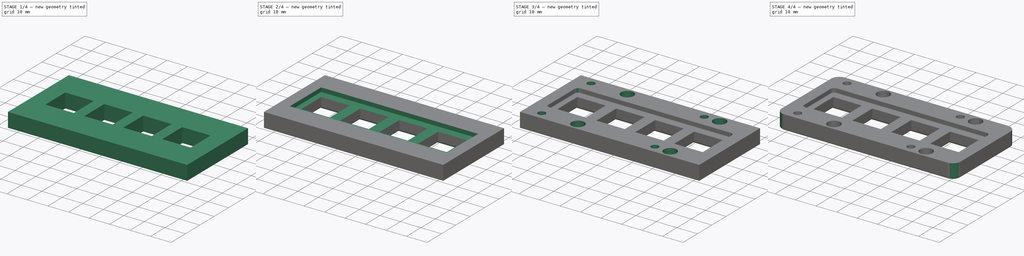
[diagram: build sequence overview — one tinted view per stage of 4, left to right]
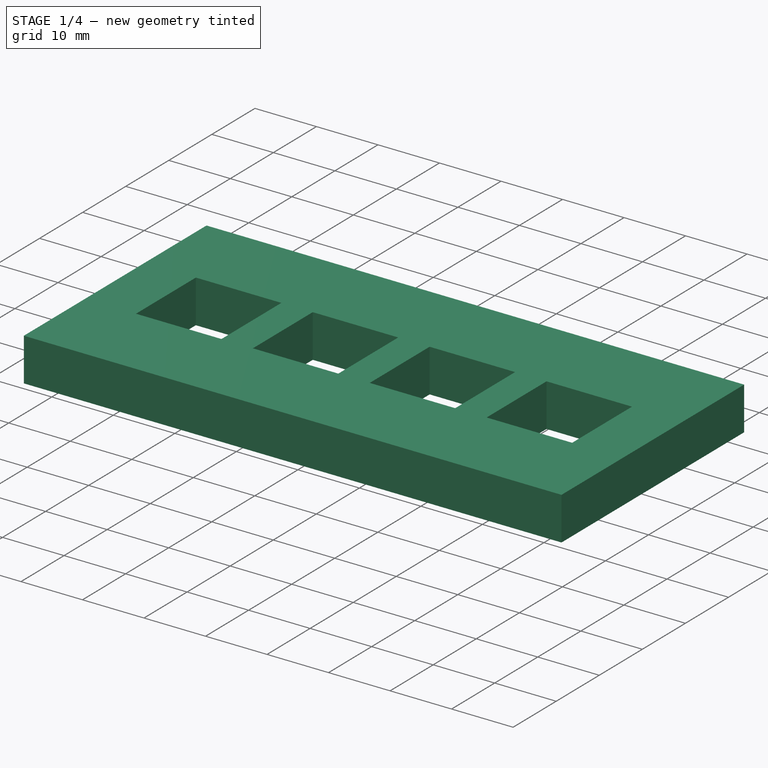
[diagram: stage 1 of 4 — iso view after this stage's code; geometry added in this stage tinted green]
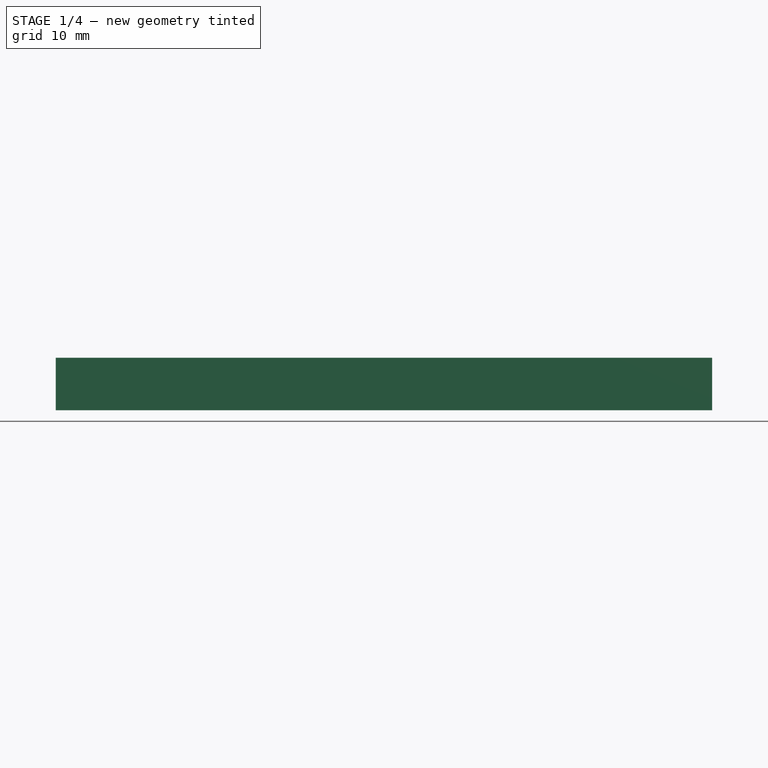
[diagram: stage 1 of 4 — front view after this stage's code; geometry added in this stage tinted green]
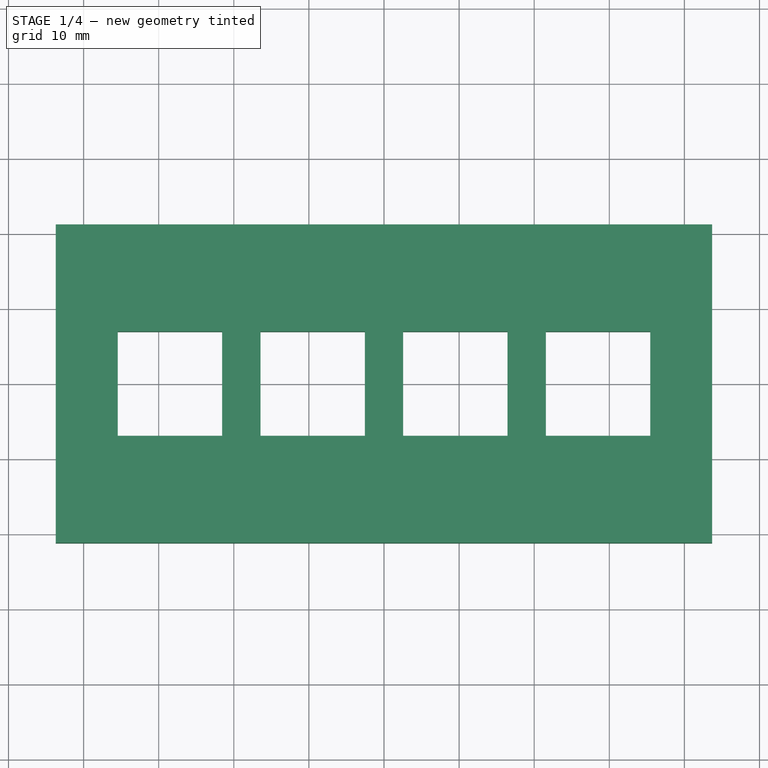
[diagram: stage 1 of 4 — top view after this stage's code; geometry added in this stage tinted green]
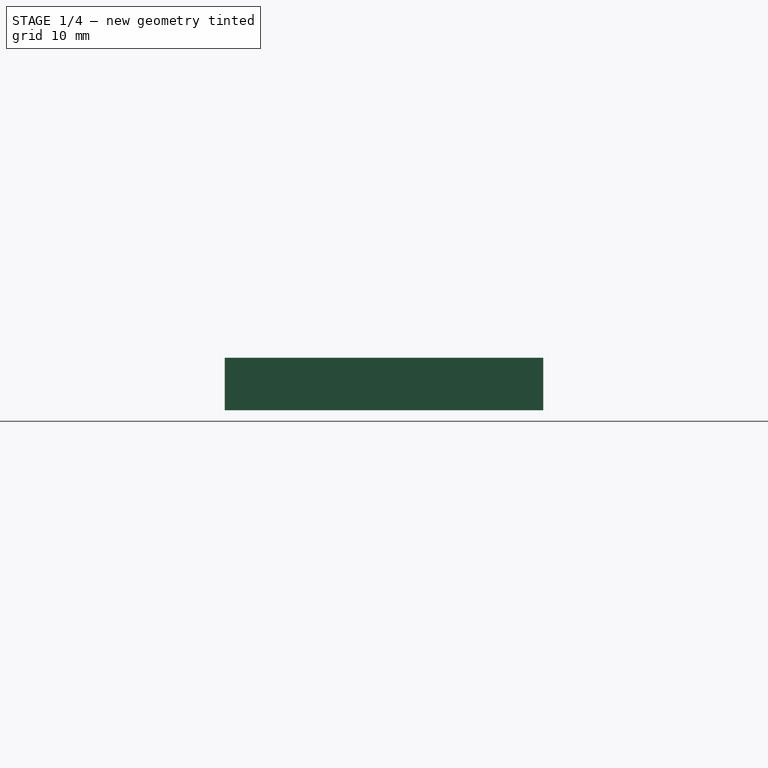
[diagram: stage 1 of 4 — right view after this stage's code; geometry added in this stage tinted green]
FCSTD DOCUMENT  (FreeCAD 0.21R33668 +26 (Git))
Label: keyPlateV1.0
License: All rights reserved
LicenseURL: https://en.wikipedia.org/wiki/All_rights_reserved
objects: Sketcher::SketchObject×7, PartDesign::Pocket×3, PartDesign::Plane×2, PartDesign::Chamfer×2, PartDesign::Fillet×2, PartDesign::Hole×2, PartDesign::Pad×1, PartDesign::Body×1
note: 30 computed .brp shape members not serialized (recipe doc carries the construction recipe); baked Part::Feature solids carry a one-line shape summary decoded from their .brp

FEATURE [Sketcher::SketchObject] Sketch
  FullyConstrained = true
  MapMode = 5
  Support = -> [XY_Plane]
  sketch-geometry (4):
    g0: LineSegment StartX=-43.7 StartY=-21.2 StartZ=0 EndX=43.7 EndY=-21.2 EndZ=0
    g1: LineSegment StartX=43.7 StartY=-21.2 StartZ=0 EndX=43.7 EndY=21.2 EndZ=0
    g2: LineSegment StartX=43.7 StartY=21.2 StartZ=0 EndX=-43.7 EndY=21.2 EndZ=0
    g3: LineSegment StartX=-43.7 StartY=21.2 StartZ=0 EndX=-43.7 EndY=-21.2 EndZ=0
  constraints (12):
    c: Coincident(g0,g1)
    c: Coincident(g1,g2)
    c: Coincident(g2,g3)
    c: Coincident(g3,g0)
    c: Horizontal(g0)
    c: Horizontal(g2)
    c: Vertical(g1)
    c: Vertical(g3)
    c: Distance(g0) = 87.4
    c: Distance(g3) = 42.4
    c: DistanceX(g2,g-1) = 43.7
    c: DistanceY(g-1,g2) = 21.2
FEATURE [PartDesign::Pad] Pad
  Direction = (0,0,1)
  Length = 7
  Length2 = 10
  Profile = -> Sketch
  ReferenceAxis = -> Sketch [N_Axis]
  Type = 0
FEATURE [PartDesign::Plane] DatumPlane
  Length = 100.621
  MapMode = 5
  Placement = pos=(0,0,7) rot=(0,0,1;0rad)
  ResizeMode = 0
  Support = -> [Pad]
  Width = 63.2212
FEATURE [Sketcher::SketchObject] Sketch001
  FullyConstrained = true
  MapMode = 5
  Placement = pos=(0,0,7) rot=(0,0,1;0rad)
  Support = -> [DatumPlane]
  sketch-geometry (20):
    g0: LineSegment StartX=-2.55 StartY=-6.95 StartZ=0 EndX=-2.55 EndY=6.95 EndZ=0
    g1: LineSegment StartX=-2.55 StartY=6.95 StartZ=0 EndX=-16.45 EndY=6.95 EndZ=0
    g2: LineSegment StartX=-16.45 StartY=6.95 StartZ=0 EndX=-16.45 EndY=-6.95 EndZ=0
    g3: LineSegment StartX=-16.45 StartY=-6.95 StartZ=0 EndX=-2.55 EndY=-6.95 EndZ=0
    g4: GeomPoint X=-9.5 Y=0 Z=0
    g5: LineSegment StartX=16.45 StartY=-6.95 StartZ=0 EndX=16.45 EndY=6.95 EndZ=0
    g6: LineSegment StartX=16.45 StartY=6.95 StartZ=0 EndX=2.55 EndY=6.95 EndZ=0
    g7: LineSegment StartX=2.55 StartY=6.95 StartZ=0 EndX=2.55 EndY=-6.95 EndZ=0
    g8: LineSegment StartX=2.55 StartY=-6.95 StartZ=0 EndX=16.45 EndY=-6.95 EndZ=0
    g9: GeomPoint X=9.5 Y=0 Z=0
    g10: LineSegment StartX=35.45 StartY=-6.95 StartZ=0 EndX=35.45 EndY=6.95 EndZ=0
    g11: LineSegment StartX=35.45 StartY=6.95 StartZ=0 EndX=21.55 EndY=6.95 EndZ=0
    g12: LineSegment StartX=21.55 StartY=6.95 StartZ=0 EndX=21.55 EndY=-6.95 EndZ=0
    g13: LineSegment StartX=21.55 StartY=-6.95 StartZ=0 EndX=35.45 EndY=-6.95 EndZ=0
    g14: GeomPoint X=28.5 Y=0 Z=0
    g15: LineSegment StartX=-35.45 StartY=-6.95 StartZ=0 EndX=-35.45 EndY=6.95 EndZ=0
    g16: LineSegment StartX=-35.45 StartY=6.95 StartZ=0 EndX=-21.55 EndY=6.95 EndZ=0
    g17: LineSegment StartX=-21.55 StartY=6.95 StartZ=0 EndX=-21.55 EndY=-6.95 EndZ=0
    g18: LineSegment StartX=-21.55 StartY=-6.95 StartZ=0 EndX=-35.45 EndY=-6.95 EndZ=0
    g19: GeomPoint X=-28.5 Y=0 Z=0
  constraints (52):
    c: Coincident(g0,g1)
    c: Coincident(g1,g2)
    c: Coincident(g2,g3)
    c: Coincident(g3,g0)
    c: Horizontal(g1)
    c: Horizontal(g3)
    c: Vertical(g0)
    c: Vertical(g2)
    c: Symmetric(g1,g0,g4)
    c: PointOnObject(g4,g-1)
    c: Coincident(g5,g6)
    c: Coincident(g6,g7)
    c: Coincident(g7,g8)
    c: Coincident(g8,g5)
    c: Horizontal(g6)
    c: Horizontal(g8)
    c: Vertical(g5)
    c: Vertical(g7)
    c: Symmetric(g6,g5,g9)
    c: PointOnObject(g9,g-1)
    c: Distance(g1) = 13.9
    c: DistanceX(g4,g9) = 19
    c: DistanceX(g4,g-1) = 9.5
    c: Coincident(g10,g11)
    c: Coincident(g11,g12)
    c: Coincident(g12,g13)
    c: Coincident(g13,g10)
    c: Horizontal(g11)
    c: Horizontal(g13)
    c: Vertical(g10)
    c: Vertical(g12)
    c: Symmetric(g11,g10,g14)
    c: PointOnObject(g14,g-1)
    c: Coincident(g15,g16)
    c: Coincident(g16,g17)
    c: Coincident(g17,g18)
    c: Coincident(g18,g15)
    c: Horizontal(g16)
    c: Horizontal(g18)
    c: Vertical(g15)
    c: Vertical(g17)
    c: Symmetric(g16,g15,g19)
    c: PointOnObject(g19,g-1)
    c: DistanceX(g9,g14) = 19
    c: DistanceX(g19,g4) = 19
    c: Equal(g1,g0)
    c: Equal(g1,g16)
    c: Equal(g1,g17)
    c: Equal(g1,g6)
    c: Equal(g1,g5)
    c: Equal(g1,g11)
    c: Equal(g1,g10)
FEATURE [PartDesign::Pocket] Pocket
  BaseFeature = -> Pad
  Direction = (0,0,-1)
  Length = 0
  Length2 = 5
  Profile = -> Sketch001
  ReferenceAxis = -> Sketch001 [N_Axis]
  Type = 3
  UpToFace = -> Pad [Face5]
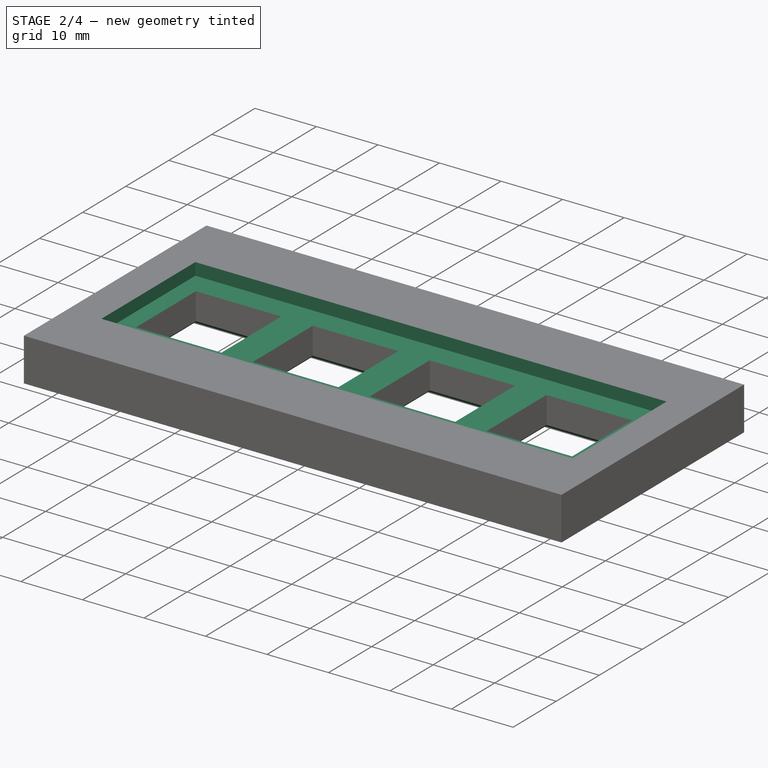
[diagram: stage 2 of 4 — iso view after this stage's code; geometry added in this stage tinted green]
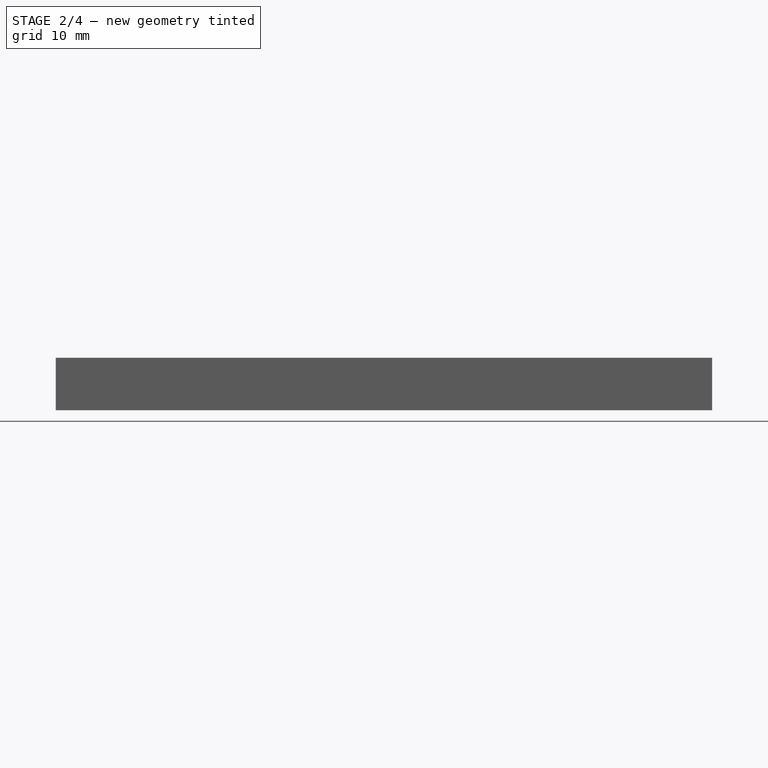
[diagram: stage 2 of 4 — front view after this stage's code; geometry added in this stage tinted green]
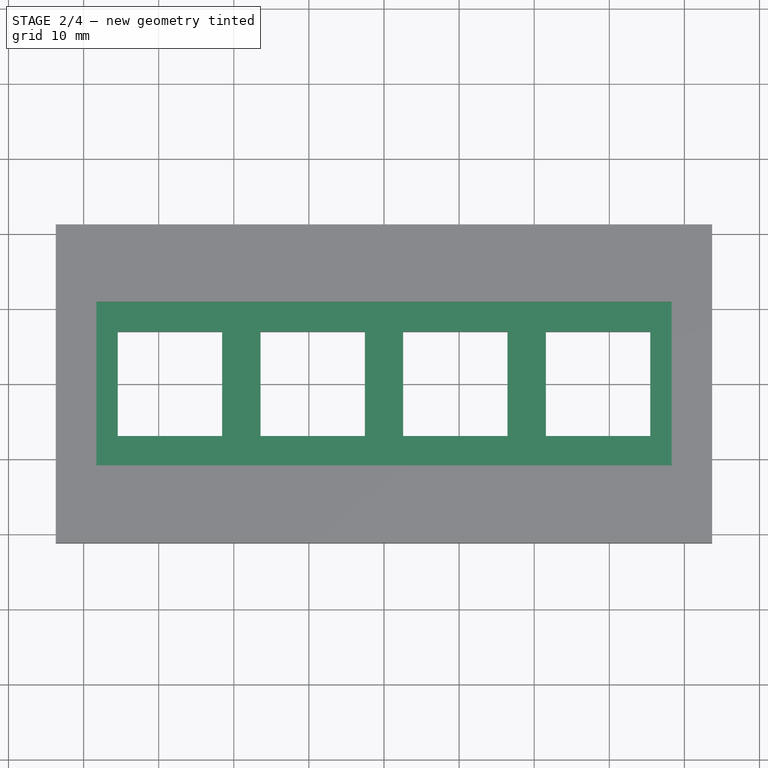
[diagram: stage 2 of 4 — top view after this stage's code; geometry added in this stage tinted green]
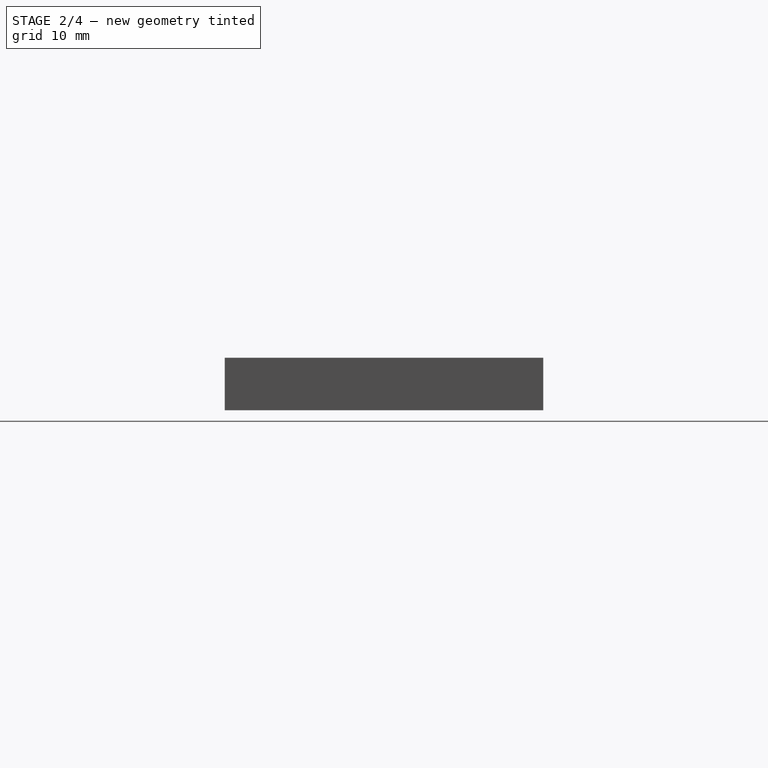
[diagram: stage 2 of 4 — right view after this stage's code; geometry added in this stage tinted green]
FEATURE [Sketcher::SketchObject] Sketch002
  FullyConstrained = true
  MapMode = 5
  Placement = pos=(0,0,7) rot=(0,0,1;0rad)
  Support = -> [DatumPlane]
  sketch-geometry (5):
    g0: LineSegment StartX=-38.3 StartY=-10.9 StartZ=0 EndX=-38.3 EndY=10.9 EndZ=0
    g1: LineSegment StartX=-38.3 StartY=10.9 StartZ=0 EndX=38.3 EndY=10.9 EndZ=0
    g2: LineSegment StartX=38.3 StartY=10.9 StartZ=0 EndX=38.3 EndY=-10.9 EndZ=0
    g3: LineSegment StartX=38.3 StartY=-10.9 StartZ=0 EndX=-38.3 EndY=-10.9 EndZ=0
    g4: GeomPoint X=0 Y=0 Z=0
  constraints (12):
    c: Coincident(g0,g1)
    c: Coincident(g1,g2)
    c: Coincident(g2,g3)
    c: Coincident(g3,g0)
    c: Horizontal(g1)
    c: Horizontal(g3)
    c: Vertical(g0)
    c: Vertical(g2)
    c: Symmetric(g1,g0,g4)
    c: Distance(g3) = 76.6
    c: Distance(g0) = 21.8
    c: Coincident(g4,g-1)
FEATURE [PartDesign::Pocket] Pocket001
  BaseFeature = -> Pocket
  Direction = (0,0,-1)
  Length = 2
  Length2 = 5
  Profile = -> Sketch002
  ReferenceAxis = -> Sketch002 [N_Axis]
  Type = 0
FEATURE [Sketcher::SketchObject] Sketch003
  FullyConstrained = true
  MapMode = 5
  Placement = pos=(0,0,7) rot=(0,0,1;0rad)
  Support = -> [DatumPlane]
  sketch-geometry (20):
    g0: LineSegment StartX=-21.1 StartY=-7.4 StartZ=0 EndX=-21.1 EndY=7.4 EndZ=0
    g1: LineSegment StartX=-21.1 StartY=7.4 StartZ=0 EndX=-35.9 EndY=7.4 EndZ=0
    g2: LineSegment StartX=-35.9 StartY=7.4 StartZ=0 EndX=-35.9 EndY=-7.4 EndZ=0
    g3: LineSegment StartX=-35.9 StartY=-7.4 StartZ=0 EndX=-21.1 EndY=-7.4 EndZ=0
    g4: GeomPoint X=-28.5 Y=0 Z=0
    g5: LineSegment StartX=-2.1 StartY=-7.4 StartZ=0 EndX=-2.1 EndY=7.4 EndZ=0
    g6: LineSegment StartX=-2.1 StartY=7.4 StartZ=0 EndX=-16.9 EndY=7.4 EndZ=0
    g7: LineSegment StartX=-16.9 StartY=7.4 StartZ=0 EndX=-16.9 EndY=-7.4 EndZ=0
    g8: LineSegment StartX=-16.9 StartY=-7.4 StartZ=0 EndX=-2.1 EndY=-7.4 EndZ=0
    g9: GeomPoint X=-9.5 Y=0 Z=0
    g10: LineSegment StartX=16.9 StartY=-7.4 StartZ=0 EndX=16.9 EndY=7.4 EndZ=0
    g11: LineSegment StartX=16.9 StartY=7.4 StartZ=0 EndX=2.1 EndY=7.4 EndZ=0
    g12: LineSegment StartX=2.1 StartY=7.4 StartZ=0 EndX=2.1 EndY=-7.4 EndZ=0
    g13: LineSegment StartX=2.1 StartY=-7.4 StartZ=0 EndX=16.9 EndY=-7.4 EndZ=0
    g14: GeomPoint X=9.5 Y=0 Z=0
    g15: LineSegment StartX=35.9 StartY=-7.4 StartZ=0 EndX=35.9 EndY=7.4 EndZ=0
    g16: LineSegment StartX=35.9 StartY=7.4 StartZ=0 EndX=21.1 EndY=7.4 EndZ=0
    g17: LineSegment StartX=21.1 StartY=7.4 StartZ=0 EndX=21.1 EndY=-7.4 EndZ=0
    g18: LineSegment StartX=21.1 StartY=-7.4 StartZ=0 EndX=35.9 EndY=-7.4 EndZ=0
    g19: GeomPoint X=28.5 Y=0 Z=0
  constraints (52):
    c: Coincident(g0,g1)
    c: Coincident(g1,g2)
    c: Coincident(g2,g3)
    c: Coincident(g3,g0)
    c: Horizontal(g1)
    c: Horizontal(g3)
    c: Vertical(g0)
    c: Vertical(g2)
    c: Symmetric(g1,g0,g4)
    c: PointOnObject(g4,g-1)
    c: Coincident(g5,g6)
    c: Coincident(g6,g7)
    c: Coincident(g7,g8)
    c: Coincident(g8,g5)
    c: Horizontal(g6)
    c: Horizontal(g8)
    c: Vertical(g5)
    c: Vertical(g7)
    c: Symmetric(g6,g5,g9)
    c: PointOnObject(g9,g-1)
    c: Coincident(g10,g11)
    c: Coincident(g11,g12)
    c: Coincident(g12,g13)
    c: Coincident(g13,g10)
    c: Horizontal(g11)
    c: Horizontal(g13)
    c: Vertical(g10)
    c: Vertical(g12)
    c: Symmetric(g11,g10,g14)
    c: PointOnObject(g14,g-1)
    c: Coincident(g15,g16)
    c: Coincident(g16,g17)
    c: Coincident(g17,g18)
    c: Coincident(g18,g15)
    c: Horizontal(g16)
    c: Horizontal(g18)
    c: Vertical(g15)
    c: Vertical(g17)
    c: Symmetric(g16,g15,g19)
    c: PointOnObject(g19,g-1)
    c: DistanceX(g9,g-1) = 9.5
    c: DistanceX(g4,g9) = 19
    c: DistanceX(g9,g14) = 19
    c: DistanceX(g14,g19) = 19
    c: Distance(g6) = 14.8
    c: Equal(g6,g5)
    c: Equal(g6,g1)
    c: Equal(g6,g0)
    c: Equal(g6,g11)
    c: Equal(g6,g10)
    c: Equal(g6,g16)
    c: Equal(g6,g15)
FEATURE [PartDesign::Pocket] Pocket002
  BaseFeature = -> Pocket001
  Direction = (0,0,-1)
  Length = 1
  Length2 = 5
  Profile = -> Sketch003
  ReferenceAxis = -> Sketch003 [N_Axis]
  Type = 0
FEATURE [PartDesign::Chamfer] Chamfer
  Angle = 45
  Base = -> Pocket002 [Edge12,Edge14,Edge15,Edge13,Edge27,Edge26,Edge24,Edge25,Edge17,Edge19,Edge18,Edge16,Edge21,Edge22,Edge23,Edge20]
  BaseFeature = -> Pocket002
  ChamferType = 0
  FlipDirection = false
  Size = 0.6
  Size2 = 1
  SupportTransform = false
  UseAllEdges = false
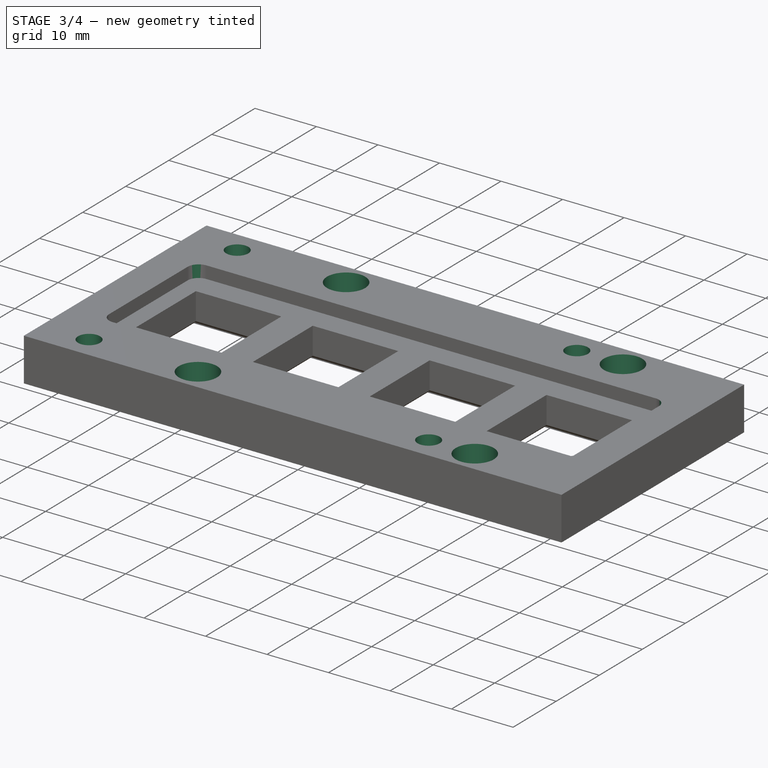
[diagram: stage 3 of 4 — iso view after this stage's code; geometry added in this stage tinted green]
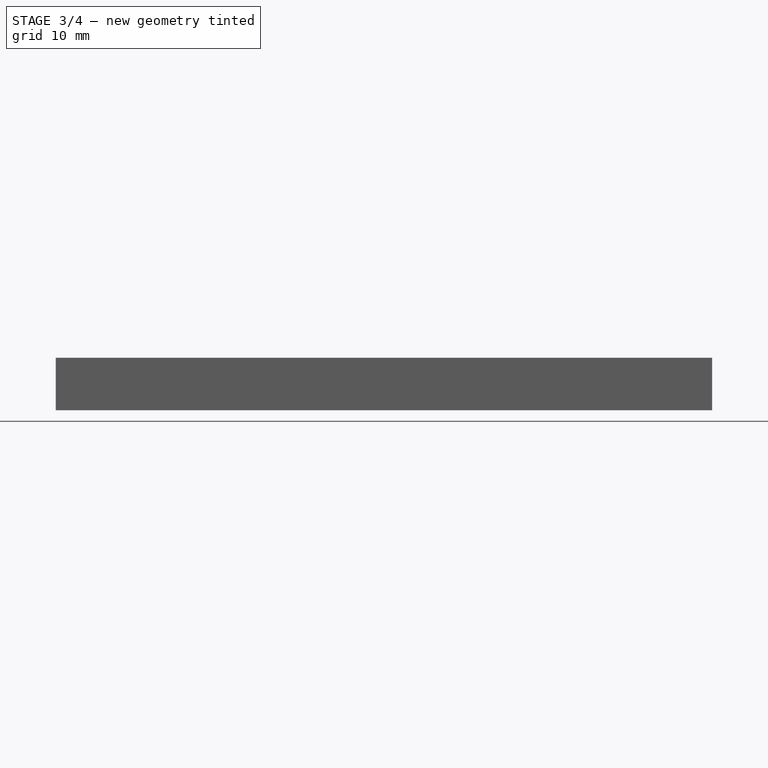
[diagram: stage 3 of 4 — front view after this stage's code; geometry added in this stage tinted green]
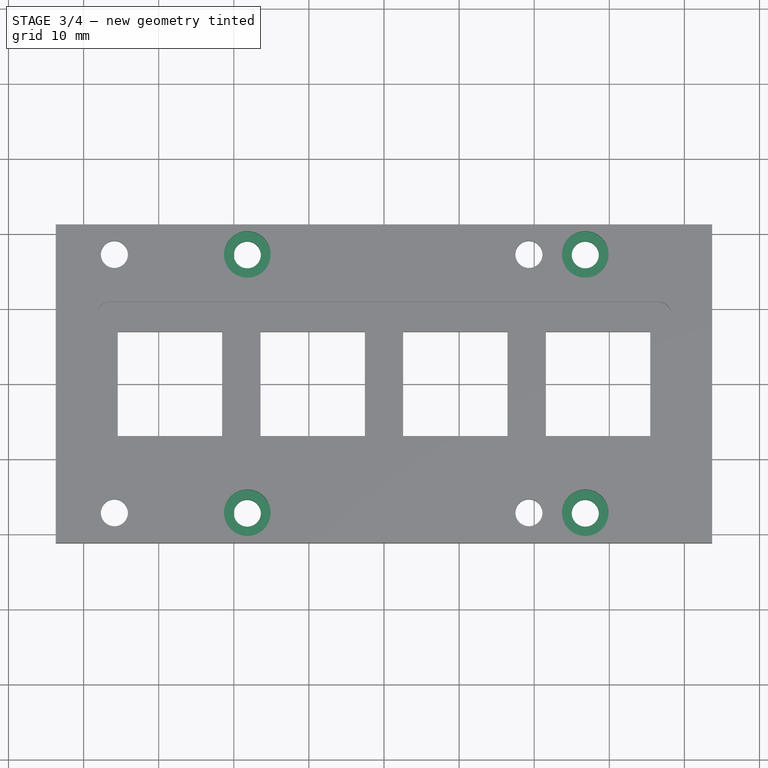
[diagram: stage 3 of 4 — top view after this stage's code; geometry added in this stage tinted green]
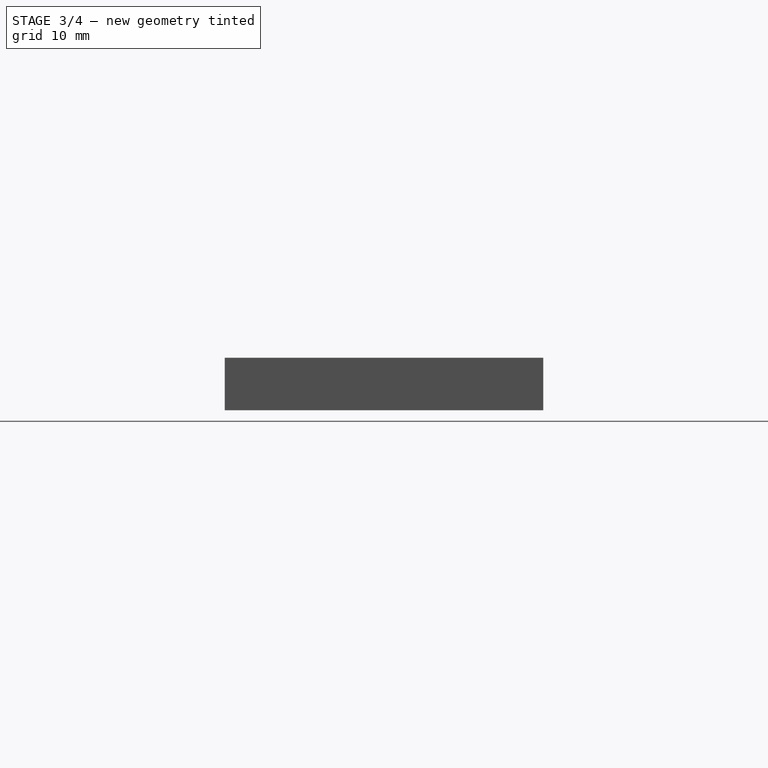
[diagram: stage 3 of 4 — right view after this stage's code; geometry added in this stage tinted green]
FEATURE [Sketcher::SketchObject] Sketch004
  FullyConstrained = true
  MapMode = 5
  Placement = pos=(0,0,7) rot=(0,0,1;0rad)
  Support = -> [DatumPlane]
  sketch-geometry (5):
    g0: LineSegment StartX=-38.3 StartY=-10.9 StartZ=0 EndX=-38.3 EndY=10.9 EndZ=0
    g1: LineSegment StartX=-38.3 StartY=10.9 StartZ=0 EndX=-42.5 EndY=10.9 EndZ=0
    g2: LineSegment StartX=-42.5 StartY=10.9 StartZ=0 EndX=-42.5 EndY=-10.9 EndZ=0
    g3: LineSegment StartX=-42.5 StartY=-10.9 StartZ=0 EndX=-38.3 EndY=-10.9 EndZ=0
    g4: GeomPoint X=-40.4 Y=0 Z=0
  constraints (13):
    c: Coincident(g0,g1)
    c: Coincident(g1,g2)
    c: Coincident(g2,g3)
    c: Coincident(g3,g0)
    c: Horizontal(g1)
    c: Horizontal(g3)
    c: Vertical(g0)
    c: Vertical(g2)
    c: Symmetric(g1,g0,g4)
    c: PointOnObject(g4,g-1)
    c: Distance(g1) = 4.2
    c: Distance(g0) = 21.8
    c: DistanceX(g4,g-1) = 40.4
FEATURE [PartDesign::Fillet] Fillet
  Base = -> Chamfer [Edge103,Edge102,Edge101,Edge104]
  BaseFeature = -> Chamfer
  Radius = 1.8
  SupportTransform = false
  UseAllEdges = false
FEATURE [Sketcher::SketchObject] Sketch006
  FullyConstrained = true
  MapMode = 5
  Placement = pos=(0,0,7) rot=(0,0,1;0rad)
  Support = -> [DatumPlane]
  sketch-geometry (4):
    g0: Circle CenterX=-18.2 CenterY=-17.2 CenterZ=0 NormalX=0 NormalY=0 NormalZ=1 AngleXU=0 Radius=2.7
    g1: Circle CenterX=-18.2 CenterY=17.2 CenterZ=0 NormalX=0 NormalY=0 NormalZ=1 AngleXU=0 Radius=2.7
    g2: Circle CenterX=26.8 CenterY=-17.2 CenterZ=0 NormalX=0 NormalY=0 NormalZ=1 AngleXU=0 Radius=2.7
    g3: Circle CenterX=26.8 CenterY=17.2 CenterZ=0 NormalX=0 NormalY=0 NormalZ=1 AngleXU=0 Radius=2.7
  constraints (12):
    c: Diameter(g0) = 5.4
    c: DistanceX(g0,g2) = 45
    c: Vertical(g0,g1)
    c: Horizontal(g0,g2)
    c: Horizontal(g1,g3)
    c: Vertical(g2,g3)
    c: Equal(g0,g1)
    c: Equal(g0,g2)
    c: Equal(g0,g3)
    c: DistanceX(g0,g-1) = 18.2
    c: DistanceY(g0,g-1) = 17.2
    c: DistanceY(g1) = 17.2
FEATURE [PartDesign::Plane] DatumPlane001
  Length = 100.621
  MapMode = 5
  Placement = pos=(0,0,0) rot=(1,0,0;3.14159rad)
  ResizeMode = 0
  Support = -> [Fillet]
  Width = 63.2212
FEATURE [Sketcher::SketchObject] Sketch005
  FullyConstrained = true
  MapMode = 5
  Placement = pos=(0,0,0) rot=(1,0,0;3.14159rad)
  Support = -> [DatumPlane001]
  sketch-geometry (5):
    g0: Circle CenterX=-35.9 CenterY=17.2 CenterZ=0 NormalX=0 NormalY=0 NormalZ=1 AngleXU=0 Radius=3.1
    g1: Circle CenterX=-35.9 CenterY=-17.2 CenterZ=0 NormalX=0 NormalY=0 NormalZ=1 AngleXU=0 Radius=3.1
    g2: Circle CenterX=19.3 CenterY=-17.2 CenterZ=0 NormalX=0 NormalY=0 NormalZ=1 AngleXU=0 Radius=3.1
    g3: Circle CenterX=19.3 CenterY=17.2 CenterZ=0 NormalX=0 NormalY=0 NormalZ=1 AngleXU=0 Radius=3.1
    g4: GeomPoint X=-8.3 Y=0 Z=0
  constraints (14):
    c: Diameter(g0) = 6.2
    c: DistanceX(g0,g3) = 55.2
    c: DistanceY(g1,g0) = 34.4
    c: DistanceX(g1,g2) = 55.2
    c: Vertical(g0,g1)
    c: Horizontal(g3,g0)
    c: Equal(g0,g1)
    c: Equal(g0,g3)
    c: Equal(g0,g2)
    c: PointOnObject(g4,g-1)
    c: DistanceX(g0,g4) = 27.6
    c: DistanceY(g4,g0) = 17.2
    c: DistanceX(g4,g-1) = 8.3
    c: Horizontal(g2,g1)
FEATURE [PartDesign::Hole] Hole
  BaseFeature = -> Fillet
  CustomThreadClearance = 0
  Depth = 7
  DepthType = 0
  Diameter = 3.6
  DrillForDepth = false
  DrillPoint = 0
  DrillPointAngle = 65
  HoleCutCountersinkAngle = 120
  HoleCutCustomValues = true
  HoleCutDepth = 3
  HoleCutDiameter = 6.2
  HoleCutType = 3
  ModelThread = false
  Profile = -> Sketch005
  Tapered = false
  TaperedAngle = 90
  ThreadClass = 0
  ThreadDepth = 7
  ThreadDepthType = 0
  ThreadDirection = 0
  ThreadFit = 1
  ThreadSize = 0
  ThreadType = 0
  Threaded = false
  UseCustomThreadClearance = false
FEATURE [PartDesign::Hole] Hole001
  BaseFeature = -> Hole
  CustomThreadClearance = 0
  Depth = 7
  DepthType = 0
  Diameter = 3.6
  DrillForDepth = false
  DrillPoint = 0
  DrillPointAngle = 155
  HoleCutCountersinkAngle = 90
  HoleCutCustomValues = false
  HoleCutDepth = 3
  HoleCutDiameter = 6.2
  HoleCutType = 1
  ModelThread = false
  Profile = -> Sketch006
  Tapered = false
  TaperedAngle = 90
  ThreadClass = 0
  ThreadDepth = 7
  ThreadDepthType = 0
  ThreadDirection = 0
  ThreadFit = 0
  ThreadSize = 0
  ThreadType = 0
  Threaded = false
  UseCustomThreadClearance = false
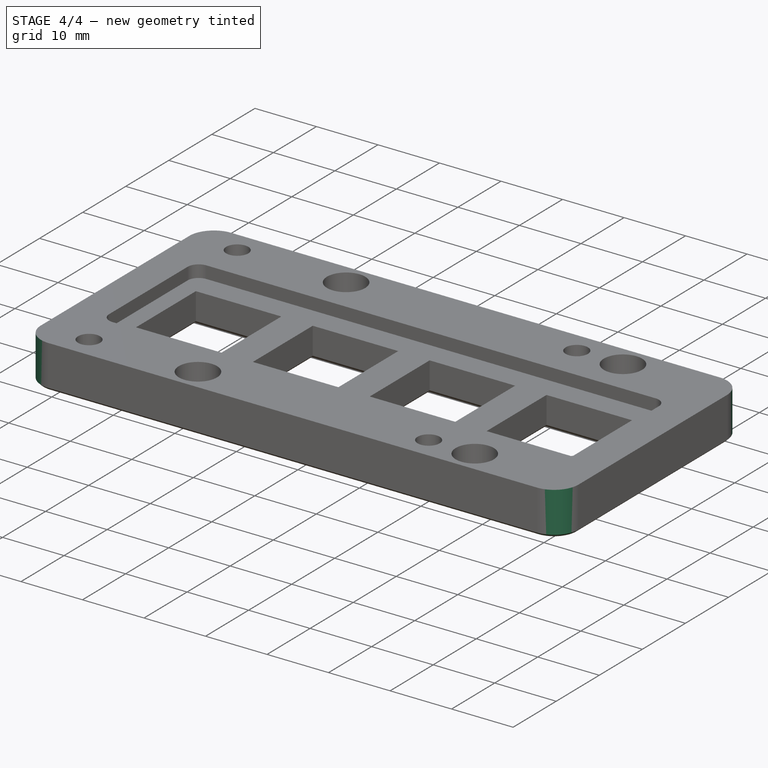
[diagram: stage 4 of 4 — iso view after this stage's code; geometry added in this stage tinted green]
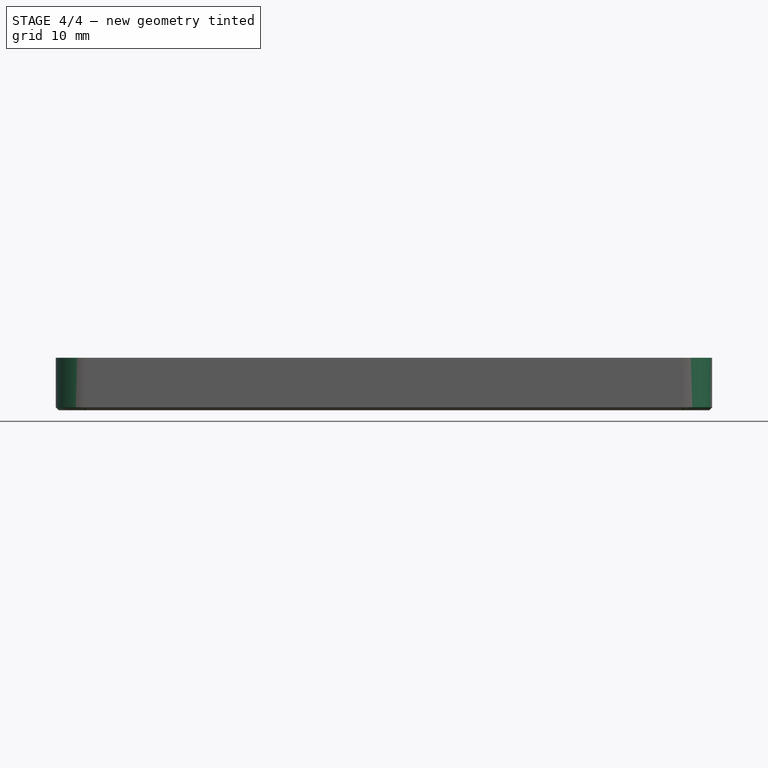
[diagram: stage 4 of 4 — front view after this stage's code; geometry added in this stage tinted green]
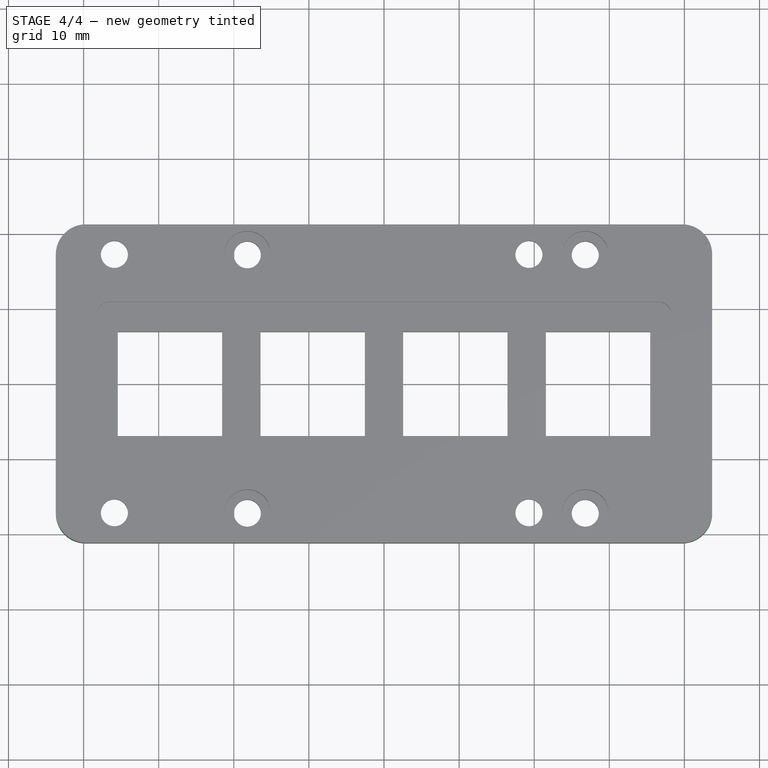
[diagram: stage 4 of 4 — top view after this stage's code; geometry added in this stage tinted green]
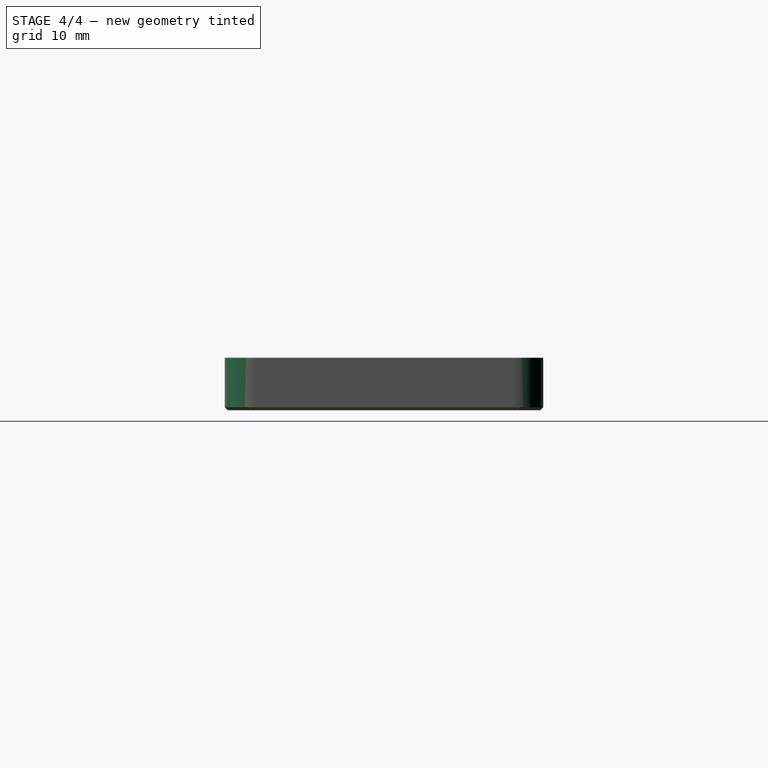
[diagram: stage 4 of 4 — right view after this stage's code; geometry added in this stage tinted green]
FEATURE [PartDesign::Fillet] Fillet001
  Base = -> Hole001 [Edge22,Edge21,Edge26,Edge24]
  BaseFeature = -> Hole001
  Radius = 4
  SupportTransform = false
  UseAllEdges = false
FEATURE [PartDesign::Chamfer] Chamfer001
  Angle = 45
  Base = -> Fillet001 [Edge28]
  BaseFeature = -> Fillet001
  ChamferType = 0
  FlipDirection = false
  Size = 0.4
  Size2 = 1
  SupportTransform = false
  UseAllEdges = false
FEATURE [PartDesign::Body] Body
  Group = -> [Sketch,Pad,DatumPlane,Sketch001,Pocket,Sketch002,Pocket001,Sketch003,Pocket002,Chamfer,Sketch004,Fillet,Sketch006,DatumPlane001,Sketch005,Hole,Hole001,Fillet001,Chamfer001]
  Origin = -> Origin
  Tip = -> Chamfer001
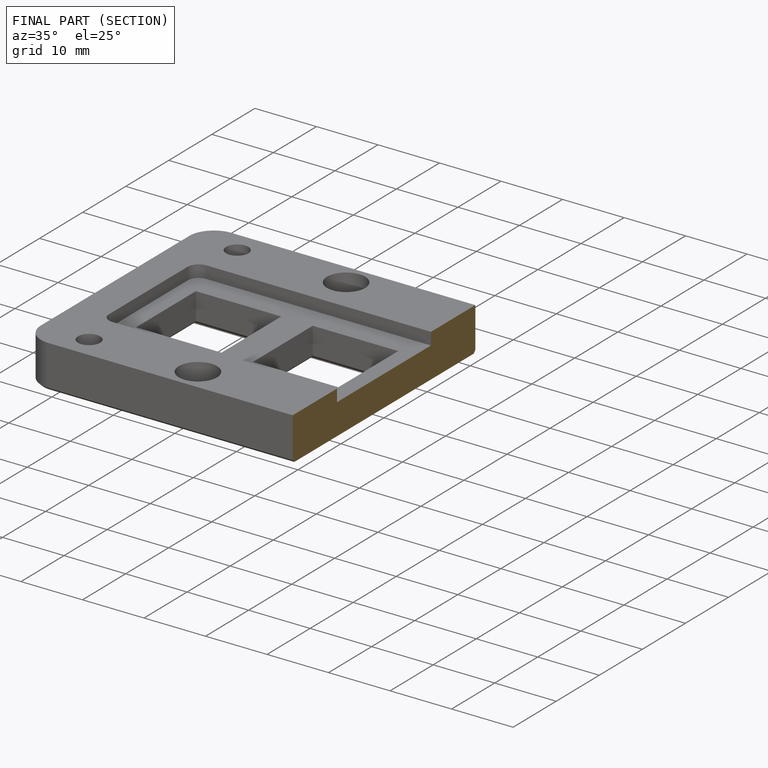
[diagram: finished part — half-section view (interior)]
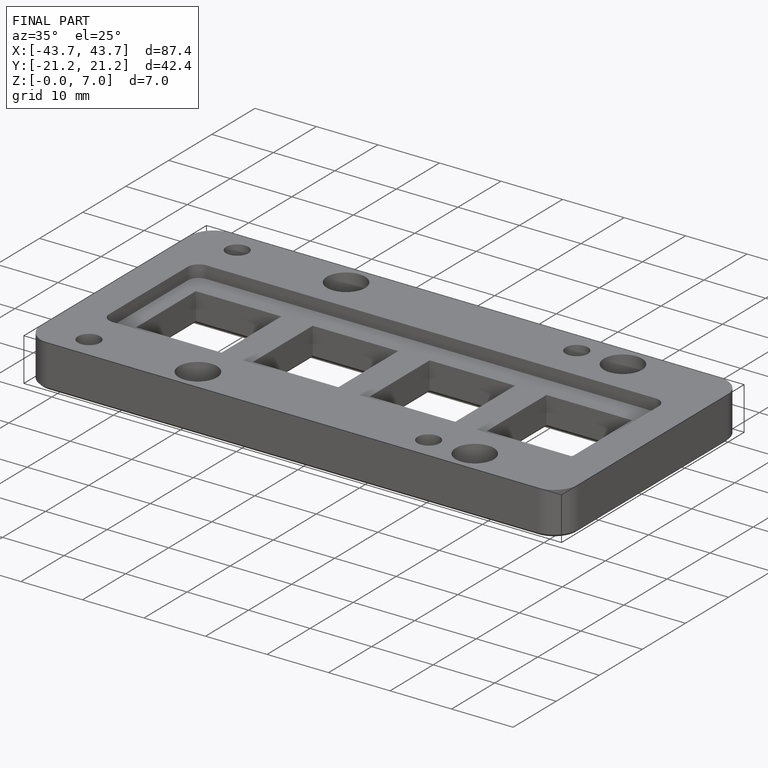
[diagram: finished part — iso view with bounding-box wireframe]
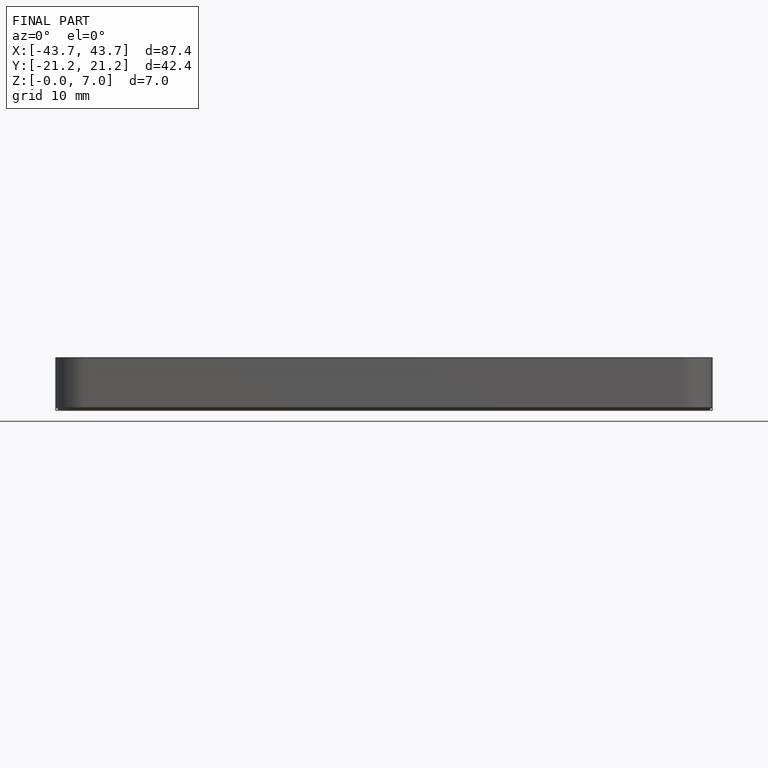
[diagram: finished part — front view with bounding-box wireframe]
